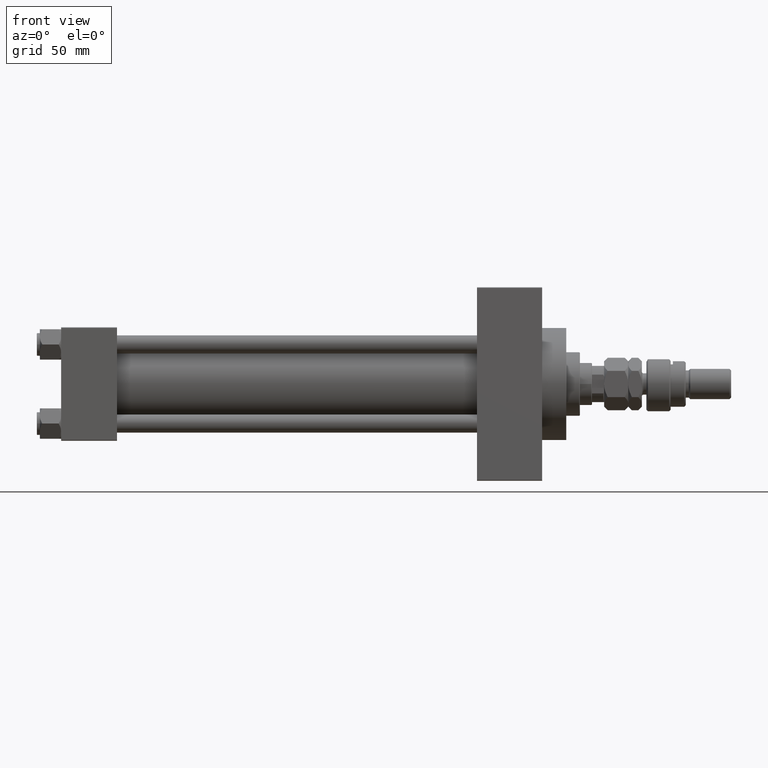
[diagram: clean part render]
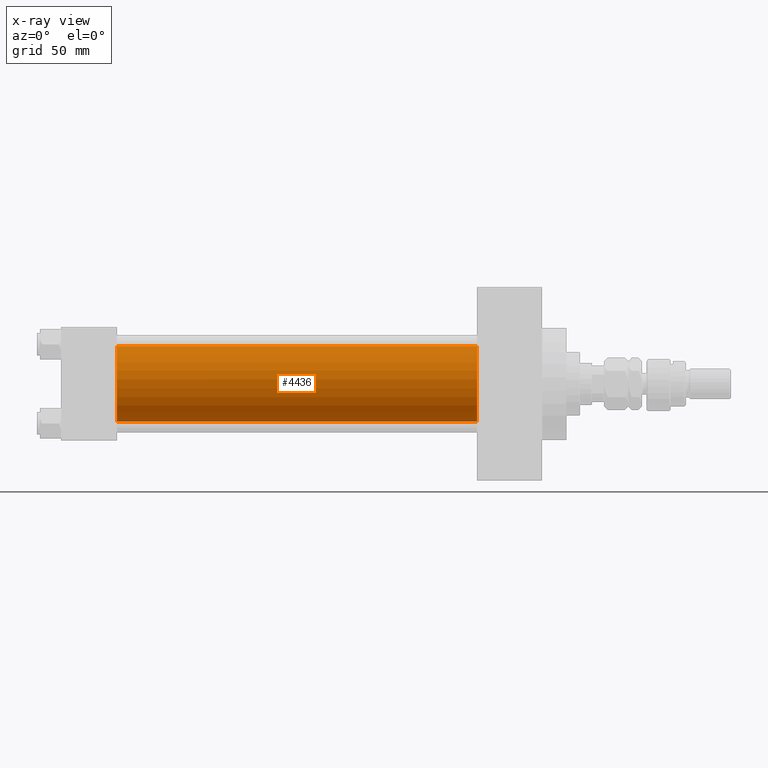
[diagram: x-ray — body ghosted, one internal face saturated and labeled with its STEP entity id]
A machine part, front view, then the same camera in x-ray: the body is ghosted and one INTERNAL B-rep face — a face not visible from any outside direction — is saturated and labeled: STEP entity #4436.
In plain terms, the highlighted cylindrical surface (partial cylindrical patch) has radius 25 mm, axis along (-1, -0, -0).
Its self-contained STEP definition (entity closure, byte-faithful):
#693 = CARTESIAN_POINT ( 'NONE',  ( 274.9999999999999432, -2.602085213965210642E-15, 0.000000000000000000 ) ) ;
#1736 = DIRECTION ( 'NONE',  ( 0.000000000000000000, 0.000000000000000000, -1.000000000000000000 ) ) ;
#2015 = LINE ( 'NONE', #50453, #17151 ) ;
#2135 = EDGE_CURVE ( 'NONE', #32081, #12774, #31920, .T. ) ;
#2783 = EDGE_CURVE ( 'NONE', #12774, #35588, #26022, .T. ) ;
#4436 = ADVANCED_FACE ( 'NONE', ( #41203 ), #29063, .F. ) ;
#4894 = VERTEX_POINT ( 'NONE', #35841 ) ;
#6262 = ORIENTED_EDGE ( 'NONE', *, *, #2783, .T. ) ;
#9427 = DIRECTION ( 'NONE',  ( 0.000000000000000000, 0.000000000000000000, 1.000000000000000000 ) ) ;
#12774 = VERTEX_POINT ( 'NONE', #46432 ) ;
#14219 = DIRECTION ( 'NONE',  ( -1.000000000000000000, -0.000000000000000000, -0.000000000000000000 ) ) ;
#17151 = VECTOR ( 'NONE', #14219, 1000.000000000000000 ) ;
#17568 = ORIENTED_EDGE ( 'NONE', *, *, #21260, .F. ) ;
#18991 = CIRCLE ( 'NONE', #20718, 25.00000000000000000 ) ;
#20718 = AXIS2_PLACEMENT_3D ( 'NONE', #29833, #21882, #1736 ) ;
#21260 = EDGE_CURVE ( 'NONE', #4894, #35588, #18991, .T. ) ;
#21882 = DIRECTION ( 'NONE',  ( 1.000000000000000000, 0.000000000000000000, 0.000000000000000000 ) ) ;
#24937 = CARTESIAN_POINT ( 'NONE',  ( 274.9999999999999432, -2.602085213965210642E-15, 0.000000000000000000 ) ) ;
#25253 = AXIS2_PLACEMENT_3D ( 'NONE', #693, #33276, #9427 ) ;
#25648 = ORIENTED_EDGE ( 'NONE', *, *, #2135, .T. ) ;
#26003 = VECTOR ( 'NONE', #50085, 1000.000000000000000 ) ;
#26022 = LINE ( 'NONE', #33189, #26003 ) ;
#28902 = DIRECTION ( 'NONE',  ( 1.000000000000000000, 0.000000000000000000, 0.000000000000000000 ) ) ;
#29063 = CYLINDRICAL_SURFACE ( 'NONE', #25253, 25.00000000000000000 ) ;
#29833 = CARTESIAN_POINT ( 'NONE',  ( 37.00000000000000000, -2.602085213965210642E-15, 0.000000000000000000 ) ) ;
#31920 = CIRCLE ( 'NONE', #38685, 25.00000000000000000 ) ;
#32081 = VERTEX_POINT ( 'NONE', #35672 ) ;
#32548 = EDGE_LOOP ( 'NONE', ( #25648, #6262, #17568, #39744 ) ) ;
#33189 = CARTESIAN_POINT ( 'NONE',  ( 274.9999999999999432, 4.595317839031724996E-16, -25.00000000000000000 ) ) ;
#33276 = DIRECTION ( 'NONE',  ( -1.000000000000000000, -0.000000000000000000, -0.000000000000000000 ) ) ;
#33635 = CARTESIAN_POINT ( 'NONE',  ( 37.00000000000000000, 4.595317839031724996E-16, -25.00000000000000000 ) ) ;
#35588 = VERTEX_POINT ( 'NONE', #33635 ) ;
#35672 = CARTESIAN_POINT ( 'NONE',  ( 274.9999999999999432, -2.602085213965210642E-15, 25.00000000000000000 ) ) ;
#35841 = CARTESIAN_POINT ( 'NONE',  ( 37.00000000000000000, -2.602085213965210642E-15, 25.00000000000000000 ) ) ;
#38685 = AXIS2_PLACEMENT_3D ( 'NONE', #24937, #28902, #45793 ) ;
#39744 = ORIENTED_EDGE ( 'NONE', *, *, #45805, .F. ) ;
#41203 = FACE_OUTER_BOUND ( 'NONE', #32548, .T. ) ;
#45793 = DIRECTION ( 'NONE',  ( 0.000000000000000000, 0.000000000000000000, -1.000000000000000000 ) ) ;
#45805 = EDGE_CURVE ( 'NONE', #32081, #4894, #2015, .T. ) ;
#46432 = CARTESIAN_POINT ( 'NONE',  ( 274.9999999999999432, 4.595317839031724996E-16, -25.00000000000000000 ) ) ;
#50085 = DIRECTION ( 'NONE',  ( -1.000000000000000000, -0.000000000000000000, -0.000000000000000000 ) ) ;
#50453 = CARTESIAN_POINT ( 'NONE',  ( 274.9999999999999432, -2.602085213965210642E-15, 25.00000000000000000 ) ) ;